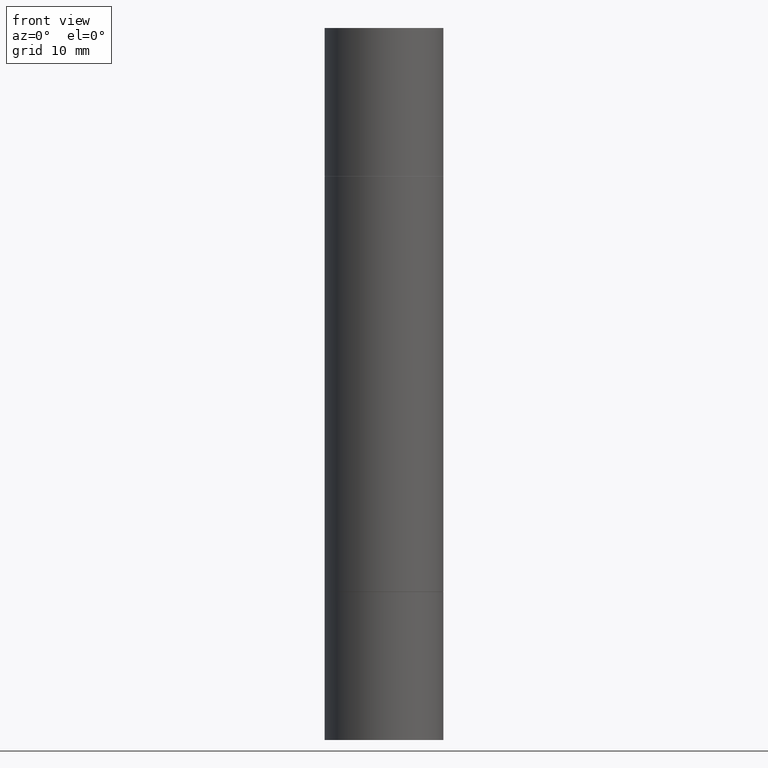
[diagram: clean part render]
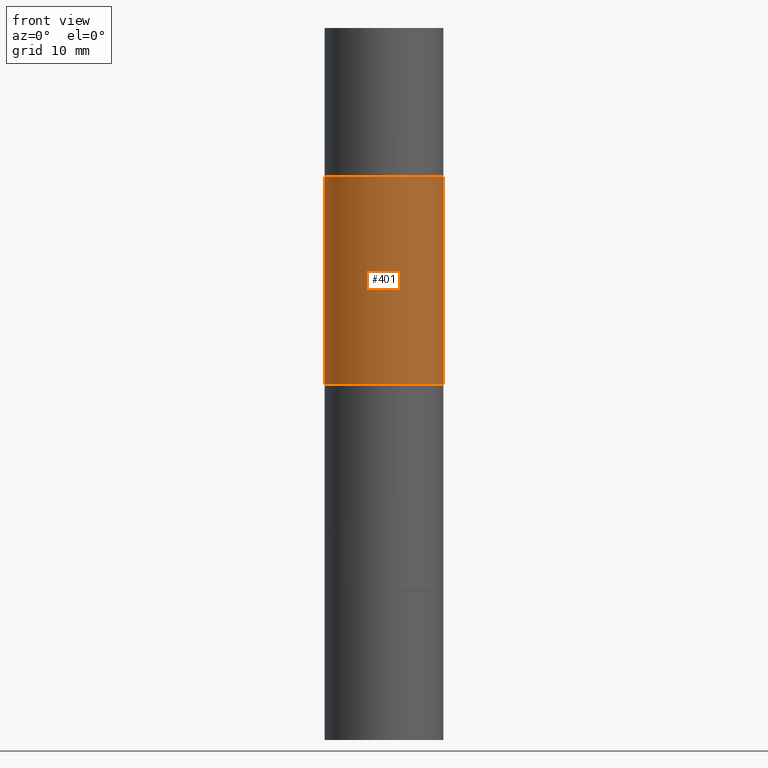
[diagram: same view with one face highlighted and labeled with its STEP entity id]
A machine part, front view. The second image highlights one B-rep face of the part: STEP entity #401.
In plain terms, the highlighted cylindrical surface (partial cylindrical patch) has radius 6.35 mm, axis along (-0, -0, -1).
Its self-contained STEP definition (entity closure, byte-faithful):
#1 = EDGE_CURVE ( 'NONE', #656, #668, #149, .T. ) ;
#66 = LINE ( 'NONE', #267, #492 ) ;
#92 = ORIENTED_EDGE ( 'NONE', *, *, #363, .F. ) ;
#104 = AXIS2_PLACEMENT_3D ( 'NONE', #567, #673, #237 ) ;
#123 = AXIS2_PLACEMENT_3D ( 'NONE', #244, #353, #139 ) ;
#129 = EDGE_LOOP ( 'NONE', ( #490, #248, #92, #547 ) ) ;
#139 = DIRECTION ( 'NONE',  ( 1.000000000000000000, -6.982962677686266711E-15, 0.000000000000000000 ) ) ;
#149 = LINE ( 'NONE', #467, #625 ) ;
#163 = AXIS2_PLACEMENT_3D ( 'NONE', #241, #246, #305 ) ;
#201 = EDGE_CURVE ( 'NONE', #506, #674, #66, .T. ) ;
#237 = DIRECTION ( 'NONE',  ( 1.000000000000000000, -6.982962677686267499E-15, 0.000000000000000000 ) ) ;
#241 = CARTESIAN_POINT ( 'NONE',  ( 3.668203209277703774E-29, -5.237222008264716599E-15, -1.499999999999999556 ) ) ;
#244 = CARTESIAN_POINT ( 'NONE',  ( 5.805542945883514935E-29, -2.184435788568482141E-15, -0.6259999999999990017 ) ) ;
#246 = DIRECTION ( 'NONE',  ( -0.000000000000000000, -3.492185875197449130E-15, -1.000000000000000000 ) ) ;
#248 = ORIENTED_EDGE ( 'NONE', *, *, #201, .T. ) ;
#267 = CARTESIAN_POINT ( 'NONE',  ( -0.2499999999999998335, -8.761433126149462132E-15, -2.999999999999999112 ) ) ;
#305 = DIRECTION ( 'NONE',  ( 0.000000000000000000, 1.000000000000000000, -3.278217592397118229E-15 ) ) ;
#329 = CARTESIAN_POINT ( 'NONE',  ( 0.2500000000000000000, -3.930176457990049608E-15, -0.6259999999999990017 ) ) ;
#353 = DIRECTION ( 'NONE',  ( 2.445468806185136597E-29, 3.492890411551752677E-15, 1.000000000000000000 ) ) ;
#363 = EDGE_CURVE ( 'NONE', #668, #674, #570, .T. ) ;
#401 = ADVANCED_FACE ( 'NONE', ( #411 ), #560, .T. ) ;
#411 = FACE_OUTER_BOUND ( 'NONE', #129, .T. ) ;
#439 = EDGE_CURVE ( 'NONE', #506, #656, #494, .T. ) ;
#467 = CARTESIAN_POINT ( 'NONE',  ( 0.2499999999999998335, -1.222229829501391012E-14, -2.999999999999999112 ) ) ;
#489 = DIRECTION ( 'NONE',  ( -2.445468806185136877E-29, -3.492890411551753071E-15, -1.000000000000000000 ) ) ;
#490 = ORIENTED_EDGE ( 'NONE', *, *, #439, .F. ) ;
#491 = CARTESIAN_POINT ( 'NONE',  ( -0.2499999999999998335, -1.995704398973716874E-15, -1.499999999999999556 ) ) ;
#492 = VECTOR ( 'NONE', #489, 39.37007874015748143 ) ;
#494 = CIRCLE ( 'NONE', #123, 0.2500000000000000000 ) ;
#506 = VERTEX_POINT ( 'NONE', #528 ) ;
#528 = CARTESIAN_POINT ( 'NONE',  ( -0.2500000000000000000, -4.693112891255996450E-16, -0.6259999999999990017 ) ) ;
#547 = ORIENTED_EDGE ( 'NONE', *, *, #1, .F. ) ;
#560 = CYLINDRICAL_SURFACE ( 'NONE', #104, 0.2499999999999998335 ) ;
#567 = CARTESIAN_POINT ( 'NONE',  ( 0.000000000000000000, -1.047655762559234344E-14, -2.999999999999999112 ) ) ;
#570 = CIRCLE ( 'NONE', #163, 0.2499999999999998335 ) ;
#583 = CARTESIAN_POINT ( 'NONE',  ( 0.2499999999999998335, -5.456569567838164864E-15, -1.499999999999999556 ) ) ;
#625 = VECTOR ( 'NONE', #627, 39.37007874015748143 ) ;
#627 = DIRECTION ( 'NONE',  ( -2.445468806185136877E-29, -3.492890411551753071E-15, -1.000000000000000000 ) ) ;
#656 = VERTEX_POINT ( 'NONE', #329 ) ;
#668 = VERTEX_POINT ( 'NONE', #583 ) ;
#673 = DIRECTION ( 'NONE',  ( -2.445468806185136597E-29, -3.492890411551752677E-15, -1.000000000000000000 ) ) ;
#674 = VERTEX_POINT ( 'NONE', #491 ) ;